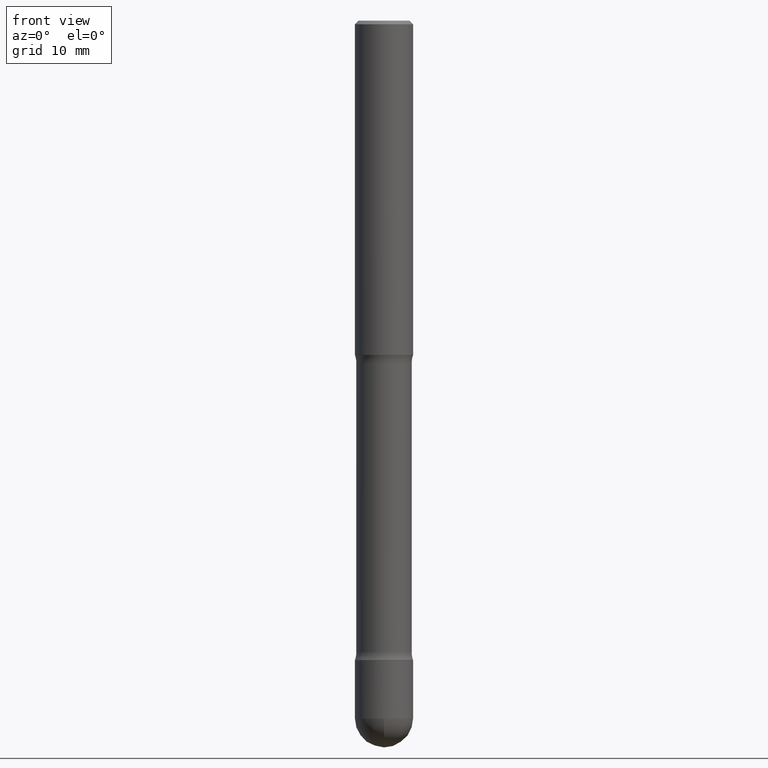
[diagram: clean part render]
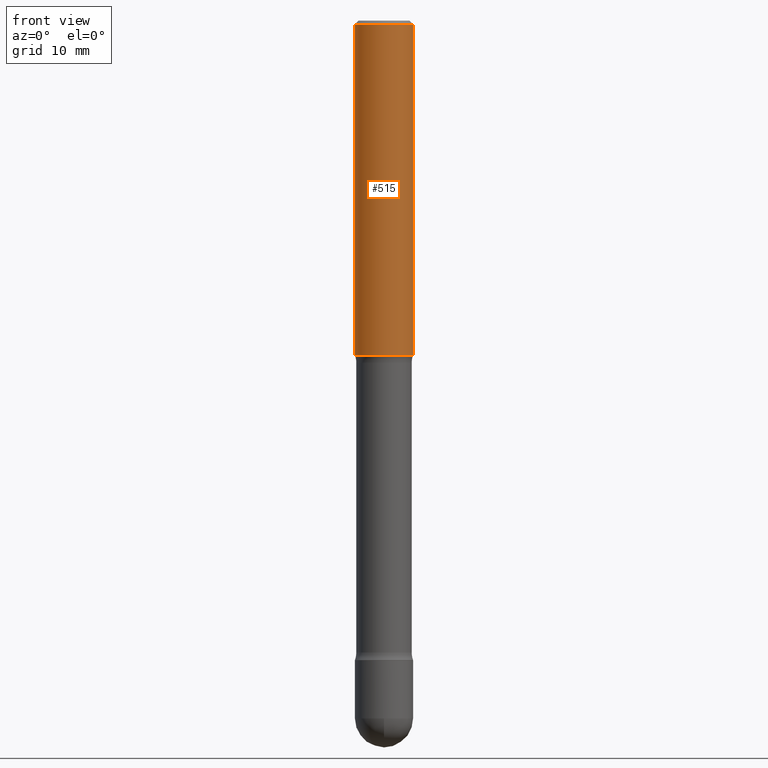
[diagram: same view with one face highlighted and labeled with its STEP entity id]
A machine part, front view. The second image highlights one B-rep face of the part: STEP entity #515.
In plain terms, the highlighted cylindrical surface (edge-blend (fillet) strip) has radius 4.0005 mm, axis along (0, -0, -1).
Its self-contained STEP definition (entity closure, byte-faithful):
#8 = DIRECTION ( 'NONE',  ( -1.000000000000000000, 6.982962677686266711E-15, 0.000000000000000000 ) ) ;
#11 = DIRECTION ( 'NONE',  ( 2.445468806185136877E-29, -3.491481338843145188E-15, -1.000000000000000000 ) ) ;
#23 = LINE ( 'NONE', #135, #426 ) ;
#46 = ORIENTED_EDGE ( 'NONE', *, *, #279, .T. ) ;
#51 = VERTEX_POINT ( 'NONE', #436 ) ;
#69 = CIRCLE ( 'NONE', #472, 0.1574999999999997791 ) ;
#91 = CARTESIAN_POINT ( 'NONE',  ( 4.890937612370220610E-31, -6.982962677686216421E-17, -0.01999999999999978531 ) ) ;
#135 = CARTESIAN_POINT ( 'NONE',  ( -0.1574999999999998901, -1.099676962482037704E-14, -3.464599999999999902 ) ) ;
#144 = CARTESIAN_POINT ( 'NONE',  ( 4.428744008001288403E-29, -6.323072704644945461E-15, -1.811000000000002608 ) ) ;
#147 = CARTESIAN_POINT ( 'NONE',  ( -0.1575000000000000011, -5.223256082909358770E-15, -1.811000000000002608 ) ) ;
#186 = DIRECTION ( 'NONE',  ( 2.445468806185136597E-29, -3.491481338843145583E-15, -1.000000000000000000 ) ) ;
#204 = VECTOR ( 'NONE', #11, 39.37007874015748143 ) ;
#211 = ORIENTED_EDGE ( 'NONE', *, *, #458, .F. ) ;
#215 = CYLINDRICAL_SURFACE ( 'NONE', #337, 0.1574999999999998901 ) ;
#228 = LINE ( 'NONE', #394, #204 ) ;
#235 = DIRECTION ( 'NONE',  ( -1.000000000000000000, 6.982962677686266711E-15, 0.000000000000000000 ) ) ;
#258 = EDGE_LOOP ( 'NONE', ( #211, #288, #46, #332 ) ) ;
#259 = DIRECTION ( 'NONE',  ( 2.445468806185136597E-29, -3.491481338843145583E-15, -1.000000000000000000 ) ) ;
#279 = EDGE_CURVE ( 'NONE', #507, #388, #23, .T. ) ;
#288 = ORIENTED_EDGE ( 'NONE', *, *, #378, .T. ) ;
#290 = VERTEX_POINT ( 'NONE', #401 ) ;
#314 = DIRECTION ( 'NONE',  ( 2.445468806185136877E-29, -3.491481338843145188E-15, -1.000000000000000000 ) ) ;
#332 = ORIENTED_EDGE ( 'NONE', *, *, #386, .F. ) ;
#337 = AXIS2_PLACEMENT_3D ( 'NONE', #534, #186, #8 ) ;
#353 = DIRECTION ( 'NONE',  ( 2.445468806185136597E-29, -3.491481338843145583E-15, -1.000000000000000000 ) ) ;
#378 = EDGE_CURVE ( 'NONE', #290, #507, #69, .T. ) ;
#381 = CIRCLE ( 'NONE', #427, 0.1575000000000000011 ) ;
#386 = EDGE_CURVE ( 'NONE', #51, #388, #381, .T. ) ;
#388 = VERTEX_POINT ( 'NONE', #147 ) ;
#394 = CARTESIAN_POINT ( 'NONE',  ( 0.1574999999999998901, -1.317711468120497794E-14, -3.464599999999999902 ) ) ;
#399 = FACE_OUTER_BOUND ( 'NONE', #258, .T. ) ;
#401 = CARTESIAN_POINT ( 'NONE',  ( 0.1574999999999997791, -1.150358061425876908E-15, -0.01999999999999978531 ) ) ;
#409 = DIRECTION ( 'NONE',  ( -1.000000000000000000, 6.982962677686268288E-15, 0.000000000000000000 ) ) ;
#426 = VECTOR ( 'NONE', #314, 39.37007874015748143 ) ;
#427 = AXIS2_PLACEMENT_3D ( 'NONE', #144, #259, #409 ) ;
#436 = CARTESIAN_POINT ( 'NONE',  ( 0.1575000000000000011, -4.276979600359918976E-15, -1.811000000000002608 ) ) ;
#458 = EDGE_CURVE ( 'NONE', #290, #51, #228, .T. ) ;
#472 = AXIS2_PLACEMENT_3D ( 'NONE', #91, #353, #235 ) ;
#507 = VERTEX_POINT ( 'NONE', #525 ) ;
#515 = ADVANCED_FACE ( 'NONE', ( #399 ), #215, .T. ) ;
#525 = CARTESIAN_POINT ( 'NONE',  ( -0.1574999999999997791, 1.029986994958723393E-15, -0.01999999999999978531 ) ) ;
#534 = CARTESIAN_POINT ( 'NONE',  ( 8.472571225909024784E-29, -1.209658624655596216E-14, -3.464599999999999902 ) ) ;